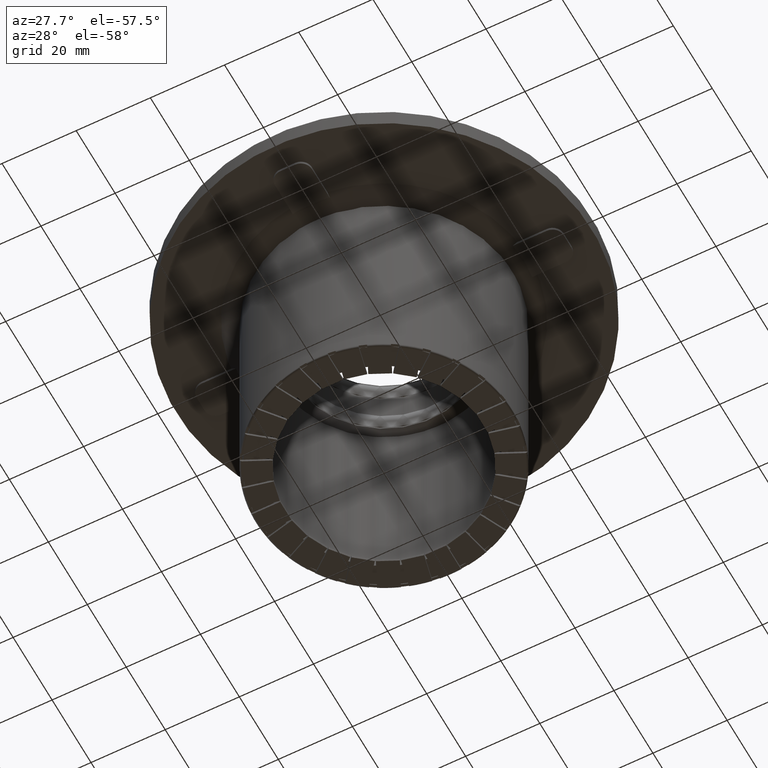
[diagram: clean part render]
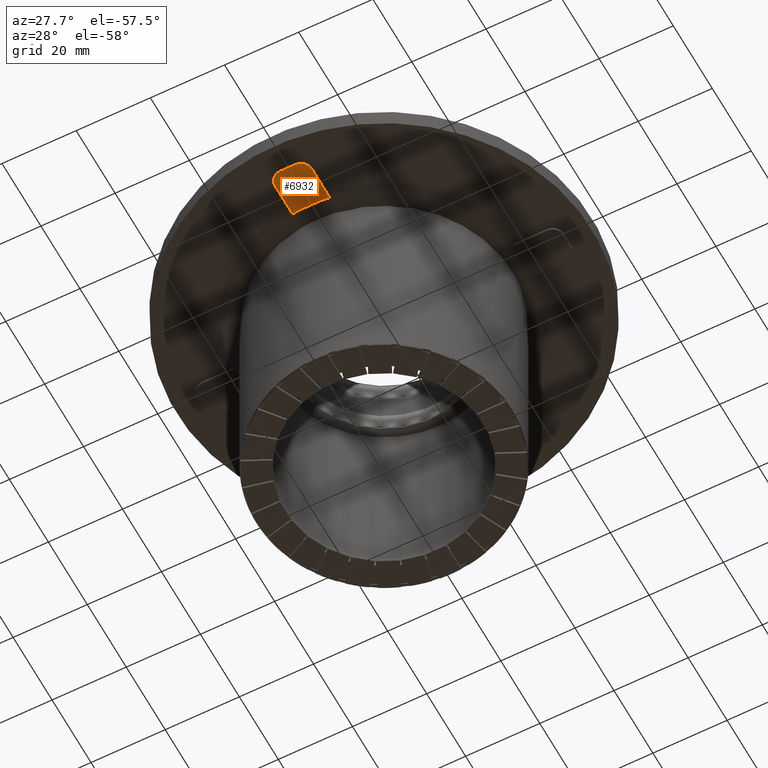
[diagram: same view with one face highlighted and labeled with its STEP entity id]
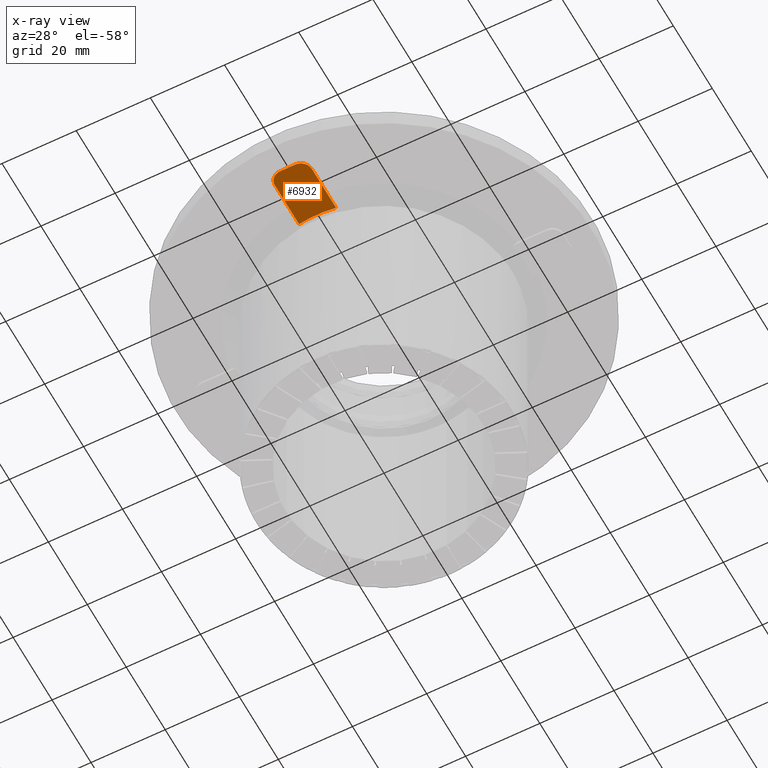
[diagram: x-ray of the same camera — body ghosted, the highlighted face saturated]
A machine part, auxiliary view. The second image highlights one B-rep face of the part: STEP entity #6932.
The next image is the same camera in x-ray: the body ghosted, the highlighted face saturated — about 0% of this face is hidden behind the body in this view.
In plain terms, the highlighted planar face has unit normal (0, 0, 1).
Its self-contained STEP definition (entity closure, byte-faithful):
#1300=CARTESIAN_POINT('',(4.999999999999999,-34.13575837739657,63.499999999999979));
#1301=VERTEX_POINT('',#1300);
#1308=CARTESIAN_POINT('',(-5.000000000000002,-34.13575837739657,63.499999999999979));
#1309=VERTEX_POINT('',#1308);
#1310=CARTESIAN_POINT('',(0.0,0.0,63.499999999999979));
#1311=DIRECTION('',(0.0,0.0,-1.0));
#1312=DIRECTION('',(-1.0,0.0,0.0));
#1313=AXIS2_PLACEMENT_3D('',#1310,#1311,#1312);
#1314=CIRCLE('',#1313,34.5);
#1315=EDGE_CURVE('',#1301,#1309,#1314,.T.);
#6774=CARTESIAN_POINT('',(-5.000000000000002,-46.5,63.499999999999979));
#6775=VERTEX_POINT('',#6774);
#6776=CARTESIAN_POINT('',(-2.000000000000002,-49.499999999999993,63.499999999999979));
#6777=VERTEX_POINT('',#6776);
#6778=CARTESIAN_POINT('',(-2.000000000000002,-46.5,63.5));
#6779=DIRECTION('',(0.0,0.0,1.0));
#6780=DIRECTION('',(-1.0,0.0,0.0));
#6781=AXIS2_PLACEMENT_3D('',#6778,#6779,#6780);
#6782=CIRCLE('',#6781,2.999999999999991);
#6783=EDGE_CURVE('',#6775,#6777,#6782,.T.);
#6816=CARTESIAN_POINT('',(1.999999999999997,-49.499999999999993,63.499999999999979));
#6817=VERTEX_POINT('',#6816);
#6818=CARTESIAN_POINT('',(-2.000000000000002,-49.499999999999993,63.5));
#6819=DIRECTION('',(1.0,0.0,0.0));
#6820=VECTOR('',#6819,3.999999999999999);
#6821=LINE('',#6818,#6820);
#6822=EDGE_CURVE('',#6777,#6817,#6821,.T.);
#6847=CARTESIAN_POINT('',(4.999999999999997,-46.5,63.499999999999979));
#6848=VERTEX_POINT('',#6847);
#6849=CARTESIAN_POINT('',(1.999999999999997,-46.5,63.5));
#6850=DIRECTION('',(0.0,0.0,1.0));
#6851=DIRECTION('',(0.0,-1.0,0.0));
#6852=AXIS2_PLACEMENT_3D('',#6849,#6850,#6851);
#6853=CIRCLE('',#6852,3.000000000000002);
#6854=EDGE_CURVE('',#6817,#6848,#6853,.T.);
#6880=CARTESIAN_POINT('',(4.999999999999997,-46.5,63.5));
#6881=DIRECTION('',(0.0,1.0,0.0));
#6882=VECTOR('',#6881,12.36424162260343);
#6883=LINE('',#6880,#6882);
#6884=EDGE_CURVE('',#6848,#1301,#6883,.T.);
#6902=CARTESIAN_POINT('',(-5.000000000000002,-34.13575837739657,63.5));
#6903=DIRECTION('',(0.0,-1.0,0.0));
#6904=VECTOR('',#6903,12.36424162260343);
#6905=LINE('',#6902,#6904);
#6906=EDGE_CURVE('',#1309,#6775,#6905,.T.);
#6919=CARTESIAN_POINT('',(2.713460E-016,-41.412775178141032,63.499999999999979));
#6920=DIRECTION('',(0.0,0.0,1.0));
#6921=DIRECTION('',(-1.0,0.0,0.0));
#6922=AXIS2_PLACEMENT_3D('',#6919,#6920,#6921);
#6923=PLANE('',#6922);
#6924=ORIENTED_EDGE('',*,*,#6783,.F.);
#6925=ORIENTED_EDGE('',*,*,#6906,.F.);
#6926=ORIENTED_EDGE('',*,*,#1315,.F.);
#6927=ORIENTED_EDGE('',*,*,#6884,.F.);
#6928=ORIENTED_EDGE('',*,*,#6854,.F.);
#6929=ORIENTED_EDGE('',*,*,#6822,.F.);
#6930=EDGE_LOOP('',(#6924,#6925,#6926,#6927,#6928,#6929));
#6931=FACE_OUTER_BOUND('',#6930,.T.);
#6932=ADVANCED_FACE('',(#6931),#6923,.F.);